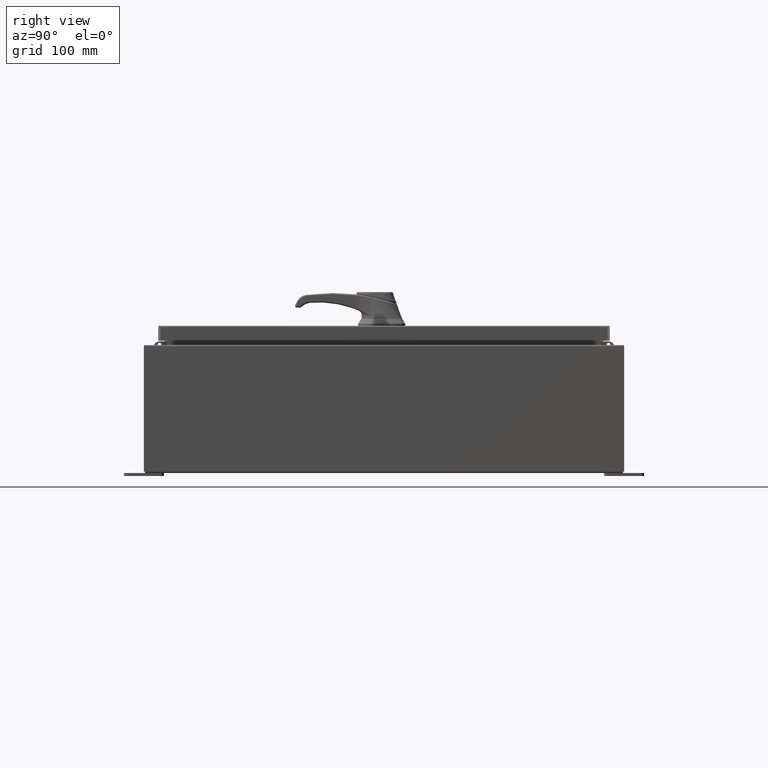
[diagram: clean part render]
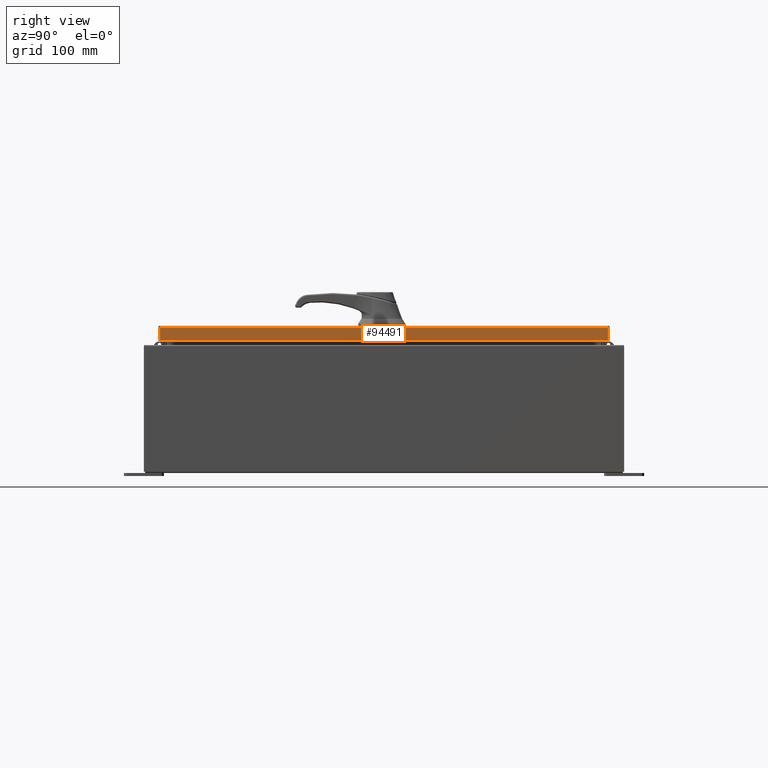
[diagram: same view with one face highlighted and labeled with its STEP entity id]
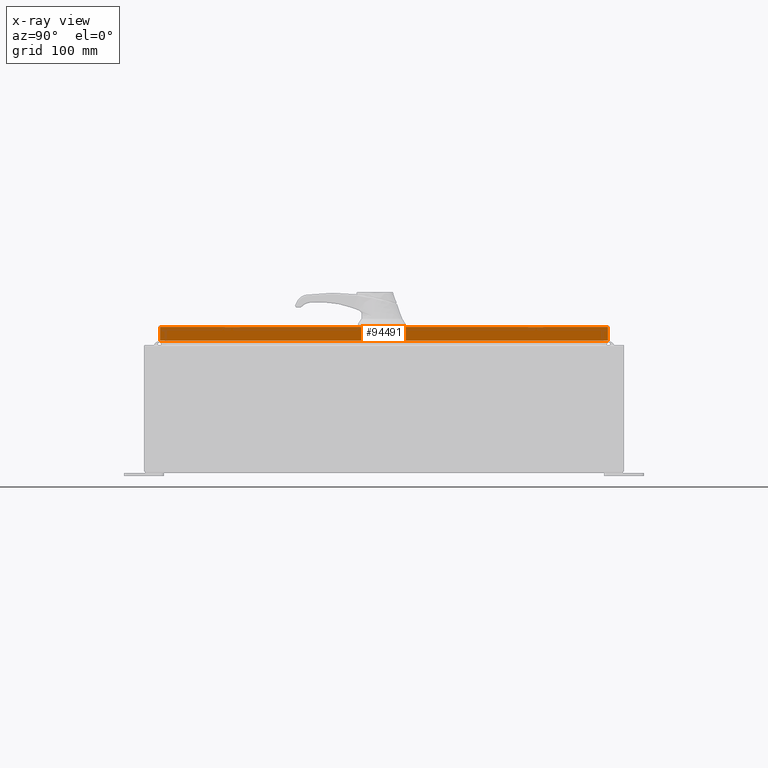
[diagram: x-ray of the same camera — body ghosted, the highlighted face saturated]
A machine part, right view. The second image highlights one B-rep face of the part: STEP entity #94491.
The next image is the same camera in x-ray: the body ghosted, the highlighted face saturated — about 0% of this face is hidden behind the body in this view.
In plain terms, the highlighted planar face has unit normal (1, 0, 0).
Its self-contained STEP definition (entity closure, byte-faithful):
#4268 = VERTEX_POINT ( 'NONE', #74598 ) ;
#5358 = CARTESIAN_POINT ( 'NONE',  ( 14.07800000000000300, 14.00515786437626200, -0.08770000000000008300 ) ) ;
#7881 = CARTESIAN_POINT ( 'NONE',  ( 14.07800000000000300, 0.0000000000000000000, -0.08770000000000008300 ) ) ;
#9734 = LINE ( 'NONE', #28126, #74644 ) ;
#10278 = AXIS2_PLACEMENT_3D ( 'NONE', #23760, #97652, #42262 ) ;
#10903 = EDGE_CURVE ( 'NONE', #28740, #111229, #118311, .T. ) ;
#12975 = CARTESIAN_POINT ( 'NONE',  ( 14.07800000000000500, -14.00515786437626500, -0.9376999999999997600 ) ) ;
#14466 = PLANE ( 'NONE',  #10278 ) ;
#15035 = EDGE_CURVE ( 'NONE', #97303, #4268, #114839, .T. ) ;
#22677 = FACE_OUTER_BOUND ( 'NONE', #88930, .T. ) ;
#23760 = CARTESIAN_POINT ( 'NONE',  ( 14.07800000000000300, 0.0000000000000000000, 3.591222135455665100E-014 ) ) ;
#27124 = DIRECTION ( 'NONE',  ( -2.532419924601866100E-015, -6.982962677686265900E-015, 1.000000000000000000 ) ) ;
#28126 = CARTESIAN_POINT ( 'NONE',  ( 14.07800000000000500, -14.09400000000000300, -0.9376999999999997600 ) ) ;
#28740 = VERTEX_POINT ( 'NONE', #89921 ) ;
#32941 = DIRECTION ( 'NONE',  ( -2.532419924601866100E-015, -6.982962677686265900E-015, 1.000000000000000000 ) ) ;
#34393 = ORIENTED_EDGE ( 'NONE', *, *, #114015, .T. ) ;
#40019 = EDGE_CURVE ( 'NONE', #28740, #97303, #9734, .T. ) ;
#40277 = ORIENTED_EDGE ( 'NONE', *, *, #15035, .F. ) ;
#42262 = DIRECTION ( 'NONE',  ( 2.532419924601866100E-015, 0.0000000000000000000, -1.000000000000000000 ) ) ;
#63756 = VECTOR ( 'NONE', #109614, 39.37007874015748100 ) ;
#68535 = VECTOR ( 'NONE', #27124, 39.37007874015748100 ) ;
#69101 = VECTOR ( 'NONE', #32941, 39.37007874015748100 ) ;
#74598 = CARTESIAN_POINT ( 'NONE',  ( 14.07800000000000300, -14.00515786437627200, -0.08770000000000008300 ) ) ;
#74644 = VECTOR ( 'NONE', #83402, 39.37007874015748100 ) ;
#76922 = ORIENTED_EDGE ( 'NONE', *, *, #40019, .F. ) ;
#82431 = CARTESIAN_POINT ( 'NONE',  ( 14.07800000000000300, -14.00515786437627200, -0.07469999999999980800 ) ) ;
#83402 = DIRECTION ( 'NONE',  ( 0.0000000000000000000, -1.000000000000000000, 0.0000000000000000000 ) ) ;
#85484 = LINE ( 'NONE', #7881, #63756 ) ;
#88930 = EDGE_LOOP ( 'NONE', ( #40277, #76922, #90965, #34393 ) ) ;
#89921 = CARTESIAN_POINT ( 'NONE',  ( 14.07800000000000500, 14.00515786437626900, -0.9376999999999997600 ) ) ;
#90965 = ORIENTED_EDGE ( 'NONE', *, *, #10903, .T. ) ;
#94491 = ADVANCED_FACE ( 'NONE', ( #22677 ), #14466, .T. ) ;
#97303 = VERTEX_POINT ( 'NONE', #12975 ) ;
#97566 = CARTESIAN_POINT ( 'NONE',  ( 14.07800000000000300, 14.00515786437626400, 1.337097160166004000E-013 ) ) ;
#97652 = DIRECTION ( 'NONE',  ( 1.000000000000000000, 0.0000000000000000000, 2.532419924601866100E-015 ) ) ;
#109614 = DIRECTION ( 'NONE',  ( 0.0000000000000000000, -1.000000000000000000, 0.0000000000000000000 ) ) ;
#111229 = VERTEX_POINT ( 'NONE', #5358 ) ;
#114015 = EDGE_CURVE ( 'NONE', #111229, #4268, #85484, .T. ) ;
#114839 = LINE ( 'NONE', #82431, #68535 ) ;
#118311 = LINE ( 'NONE', #97566, #69101 ) ;